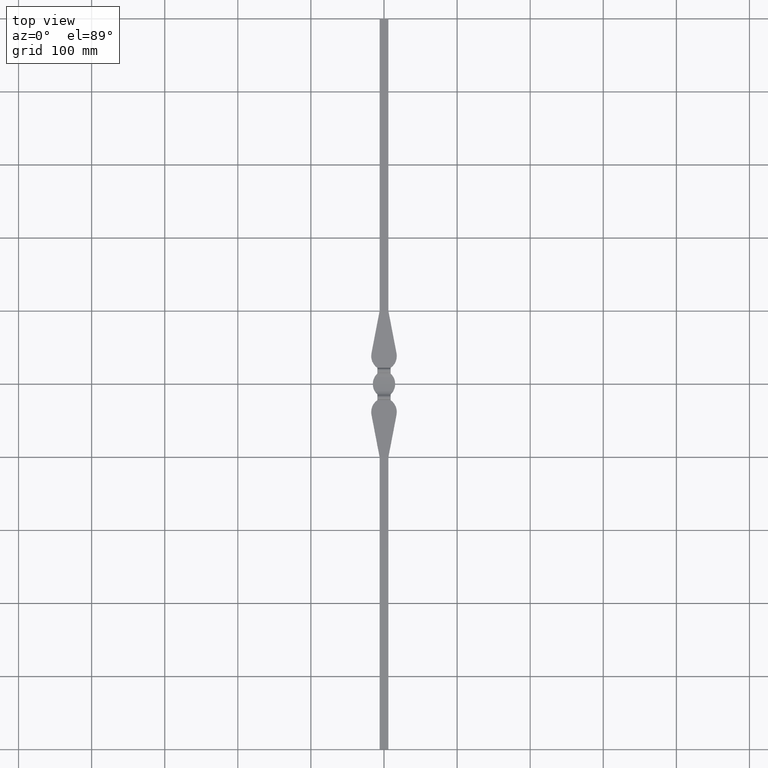
[diagram: clean part render]
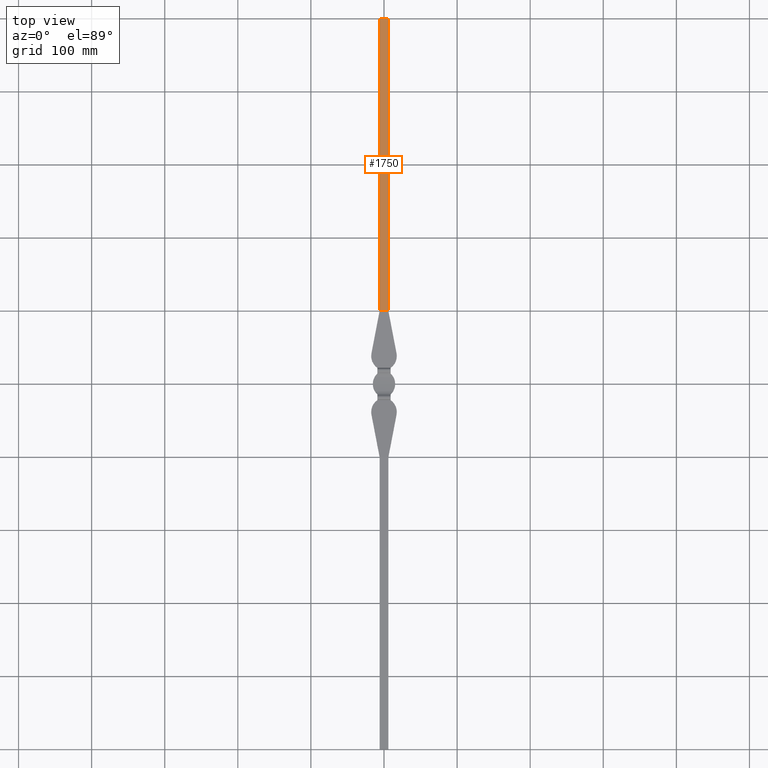
[diagram: same view with one face highlighted and labeled with its STEP entity id]
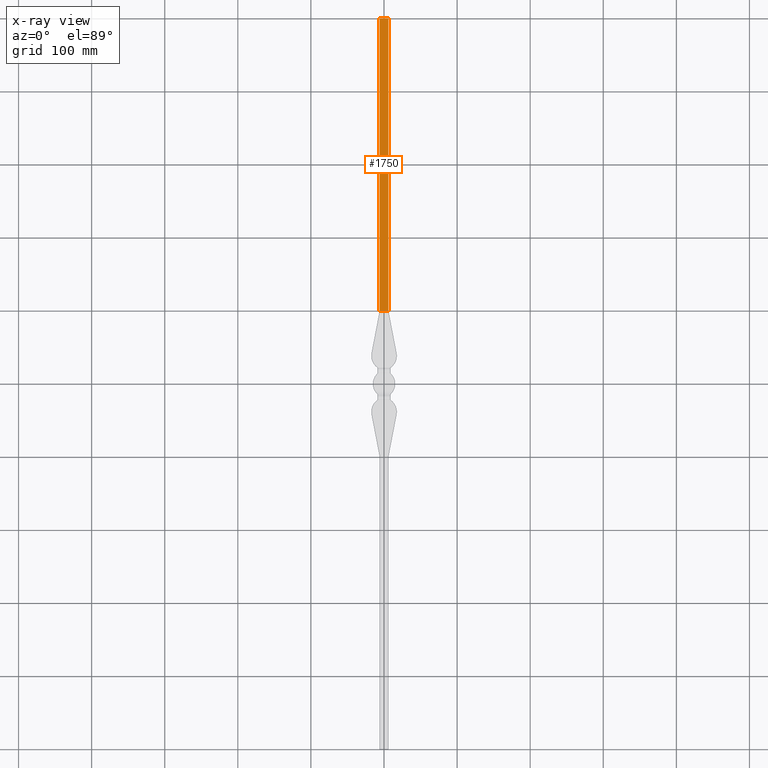
[diagram: x-ray of the same camera — body ghosted, the highlighted face saturated]
A machine part, top view. The second image highlights one B-rep face of the part: STEP entity #1750.
The next image is the same camera in x-ray: the body ghosted, the highlighted face saturated — about 0% of this face is hidden behind the body in this view.
In plain terms, the highlighted planar face has unit normal (0, 0, -1).
Its self-contained STEP definition (entity closure, byte-faithful):
#250 = CARTESIAN_POINT ( 'NONE',  ( 6.000000000000000000, 1016.970562748477278, 6.000000000000000000 ) ) ;
#469 = CARTESIAN_POINT ( 'NONE',  ( -6.000000000000000000, 100.0000000000000000, 6.000000000000000000 ) ) ;
#796 = EDGE_CURVE ( 'NONE', #11219, #6038, #11529, .T. ) ;
#1490 = ORIENTED_EDGE ( 'NONE', *, *, #2616, .F. ) ;
#1561 = VECTOR ( 'NONE', #8559, 1000.000000000000000 ) ;
#1750 = ADVANCED_FACE ( 'NONE', ( #8481 ), #2261, .F. ) ;
#1900 = VERTEX_POINT ( 'NONE', #9336 ) ;
#2261 = PLANE ( 'NONE',  #11142 ) ;
#2285 = DIRECTION ( 'NONE',  ( 1.000000000000000000, 0.000000000000000000, 0.000000000000000000 ) ) ;
#2616 = EDGE_CURVE ( 'NONE', #1900, #10468, #10576, .T. ) ;
#2804 = VECTOR ( 'NONE', #3333, 1000.000000000000000 ) ;
#3083 = LINE ( 'NONE', #10282, #1561 ) ;
#3088 = CARTESIAN_POINT ( 'NONE',  ( -6.000000000000000000, 100.0000000000000000, 6.000000000000000000 ) ) ;
#3149 = EDGE_CURVE ( 'NONE', #1900, #11219, #3083, .T. ) ;
#3175 = CARTESIAN_POINT ( 'NONE',  ( -6.000000000000000000, 1016.970562748477278, 6.000000000000000000 ) ) ;
#3333 = DIRECTION ( 'NONE',  ( 1.000000000000000000, -0.000000000000000000, 0.000000000000000000 ) ) ;
#4084 = VECTOR ( 'NONE', #2285, 1000.000000000000000 ) ;
#4394 = EDGE_LOOP ( 'NONE', ( #1490, #5347, #10315, #9977 ) ) ;
#4473 = VECTOR ( 'NONE', #5573, 1000.000000000000000 ) ;
#5347 = ORIENTED_EDGE ( 'NONE', *, *, #3149, .T. ) ;
#5573 = DIRECTION ( 'NONE',  ( -0.000000000000000000, -1.000000000000000000, -0.000000000000000000 ) ) ;
#6038 = VERTEX_POINT ( 'NONE', #11314 ) ;
#6452 = EDGE_CURVE ( 'NONE', #10468, #6038, #8740, .T. ) ;
#6667 = DIRECTION ( 'NONE',  ( -1.000000000000000000, 0.000000000000000000, -0.000000000000000000 ) ) ;
#6947 = CARTESIAN_POINT ( 'NONE',  ( -6.000000000000000000, 500.0000000000000000, 6.000000000000000000 ) ) ;
#8352 = CARTESIAN_POINT ( 'NONE',  ( 6.000000000000000000, 500.0000000000000000, 6.000000000000000000 ) ) ;
#8481 = FACE_OUTER_BOUND ( 'NONE', #4394, .T. ) ;
#8559 = DIRECTION ( 'NONE',  ( -0.000000000000000000, -1.000000000000000000, -0.000000000000000000 ) ) ;
#8585 = DIRECTION ( 'NONE',  ( 0.000000000000000000, 0.000000000000000000, -1.000000000000000000 ) ) ;
#8740 = LINE ( 'NONE', #250, #4473 ) ;
#9336 = CARTESIAN_POINT ( 'NONE',  ( -6.000000000000000000, 500.0000000000000000, 6.000000000000000000 ) ) ;
#9977 = ORIENTED_EDGE ( 'NONE', *, *, #6452, .F. ) ;
#10282 = CARTESIAN_POINT ( 'NONE',  ( -6.000000000000000000, 1016.970562748477278, 6.000000000000000000 ) ) ;
#10315 = ORIENTED_EDGE ( 'NONE', *, *, #796, .T. ) ;
#10468 = VERTEX_POINT ( 'NONE', #8352 ) ;
#10576 = LINE ( 'NONE', #6947, #2804 ) ;
#11142 = AXIS2_PLACEMENT_3D ( 'NONE', #3175, #8585, #6667 ) ;
#11219 = VERTEX_POINT ( 'NONE', #3088 ) ;
#11314 = CARTESIAN_POINT ( 'NONE',  ( 6.000000000000000000, 100.0000000000000000, 6.000000000000000000 ) ) ;
#11529 = LINE ( 'NONE', #469, #4084 ) ;